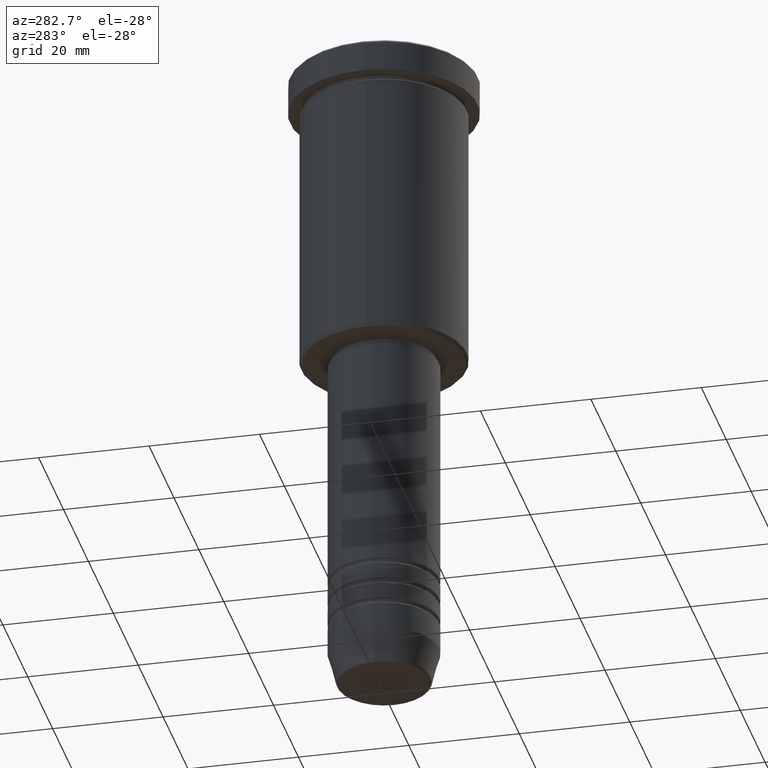
[diagram: clean part render]
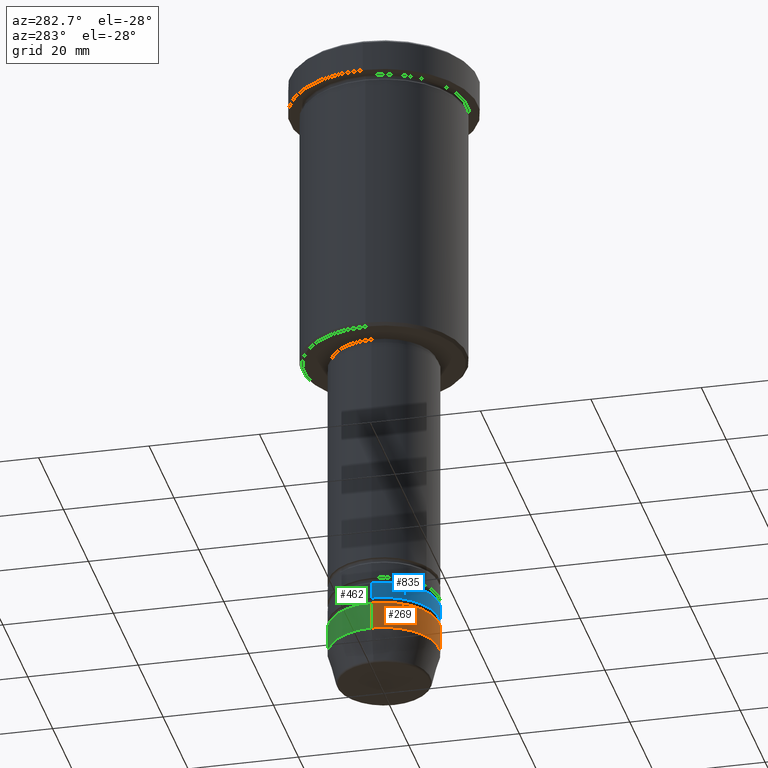
[diagram: same view with three faces highlighted in distinct colors, each labeled with its STEP entity id]
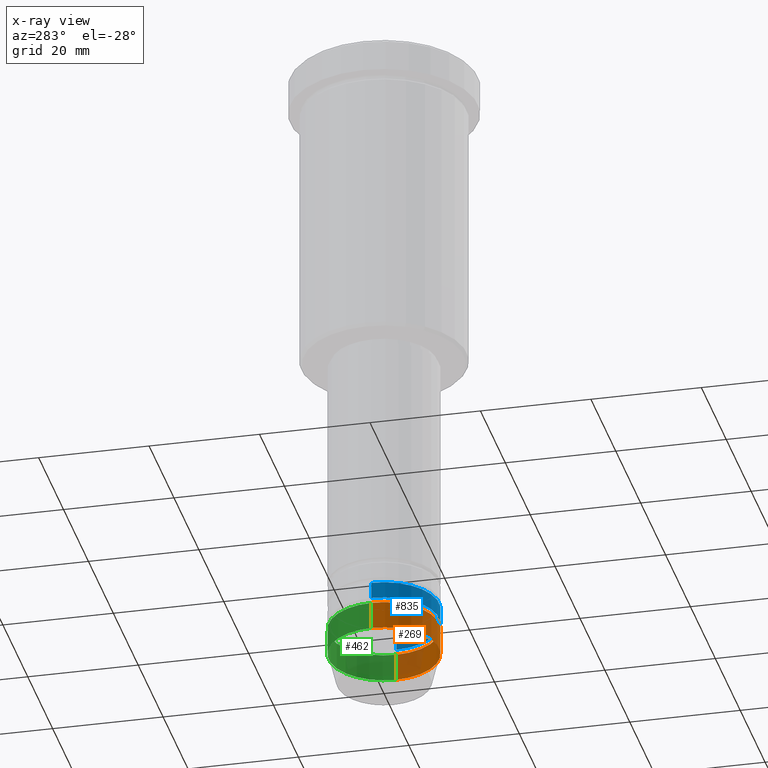
[diagram: x-ray of the same camera — body ghosted, the three highlighted faces saturated]
A machine part, auxiliary view with three faces highlighted in distinct colors.
The next image is the same camera in x-ray (body ghosted, the three faces saturated) — at least one of them is partly hidden behind the body in this view.
Their STEP definitions:

[orange] entity #269 — the highlighted cylindrical surface (partial cylindrical patch) has radius 10 mm, axis along (-0, -0, 1).
#32 = DIRECTION ( 'NONE',  ( -0.000000000000000000, -0.000000000000000000, 1.000000000000000000 ) ) ;
#38 = LINE ( 'NONE', #130, #307 ) ;
#41 = CIRCLE ( 'NONE', #196, 10.00000000000000000 ) ;
#95 = VECTOR ( 'NONE', #32, 1000.000000000000000 ) ;
#130 = CARTESIAN_POINT ( 'NONE',  ( 10.00000000000000178, 0.000000000000000000, 0.000000000000000000 ) ) ;
#196 = AXIS2_PLACEMENT_3D ( 'NONE', #913, #892, #697 ) ;
#212 = VERTEX_POINT ( 'NONE', #984 ) ;
#227 = VERTEX_POINT ( 'NONE', #310 ) ;
#269 = ADVANCED_FACE ( 'NONE', ( #758 ), #784, .T. ) ;
#302 = AXIS2_PLACEMENT_3D ( 'NONE', #1142, #409, #1058 ) ;
#303 = ORIENTED_EDGE ( 'NONE', *, *, #928, .F. ) ;
#307 = VECTOR ( 'NONE', #313, 1000.000000000000000 ) ;
#310 = CARTESIAN_POINT ( 'NONE',  ( 10.00000000000000000, 0.000000000000000000, -108.9999999999999858 ) ) ;
#313 = DIRECTION ( 'NONE',  ( -0.000000000000000000, -0.000000000000000000, 1.000000000000000000 ) ) ;
#360 = VERTEX_POINT ( 'NONE', #997 ) ;
#407 = ORIENTED_EDGE ( 'NONE', *, *, #1136, .F. ) ;
#409 = DIRECTION ( 'NONE',  ( -0.000000000000000000, -0.000000000000000000, 1.000000000000000000 ) ) ;
#423 = DIRECTION ( 'NONE',  ( -0.000000000000000000, -0.000000000000000000, 1.000000000000000000 ) ) ;
#424 = AXIS2_PLACEMENT_3D ( 'NONE', #898, #423, #995 ) ;
#494 = CARTESIAN_POINT ( 'NONE',  ( -10.00000000000000178, 1.224646799147353454E-15, 0.000000000000000000 ) ) ;
#575 = CIRCLE ( 'NONE', #424, 10.00000000000000178 ) ;
#653 = EDGE_CURVE ( 'NONE', #360, #227, #38, .T. ) ;
#685 = ORIENTED_EDGE ( 'NONE', *, *, #899, .T. ) ;
#697 = DIRECTION ( 'NONE',  ( 1.000000000000000000, 0.000000000000000000, 0.000000000000000000 ) ) ;
#758 = FACE_OUTER_BOUND ( 'NONE', #1080, .T. ) ;
#784 = CYLINDRICAL_SURFACE ( 'NONE', #302, 10.00000000000000178 ) ;
#800 = ORIENTED_EDGE ( 'NONE', *, *, #653, .T. ) ;
#892 = DIRECTION ( 'NONE',  ( -0.000000000000000000, -0.000000000000000000, 1.000000000000000000 ) ) ;
#898 = CARTESIAN_POINT ( 'NONE',  ( 0.000000000000000000, 0.000000000000000000, -113.9999999999999858 ) ) ;
#899 = EDGE_CURVE ( 'NONE', #1060, #360, #575, .T. ) ;
#913 = CARTESIAN_POINT ( 'NONE',  ( 0.000000000000000000, 0.000000000000000000, -108.9999999999999858 ) ) ;
#928 = EDGE_CURVE ( 'NONE', #212, #227, #41, .T. ) ;
#984 = CARTESIAN_POINT ( 'NONE',  ( -10.00000000000000000, 1.224646799147353256E-15, -108.9999999999999858 ) ) ;
#995 = DIRECTION ( 'NONE',  ( 1.000000000000000000, 0.000000000000000000, 0.000000000000000000 ) ) ;
#997 = CARTESIAN_POINT ( 'NONE',  ( 10.00000000000000178, 0.000000000000000000, -113.9999999999999858 ) ) ;
#1058 = DIRECTION ( 'NONE',  ( 1.000000000000000000, 0.000000000000000000, 0.000000000000000000 ) ) ;
#1060 = VERTEX_POINT ( 'NONE', #1109 ) ;
#1080 = EDGE_LOOP ( 'NONE', ( #407, #685, #800, #303 ) ) ;
#1109 = CARTESIAN_POINT ( 'NONE',  ( -10.00000000000000178, 1.224646799147353454E-15, -113.9999999999999858 ) ) ;
#1125 = LINE ( 'NONE', #494, #95 ) ;
#1136 = EDGE_CURVE ( 'NONE', #1060, #212, #1125, .T. ) ;
#1142 = CARTESIAN_POINT ( 'NONE',  ( 0.000000000000000000, 0.000000000000000000, 0.000000000000000000 ) ) ;

[blue] entity #835 — the highlighted cylindrical surface (partial cylindrical patch) has radius 10 mm, axis along (-0, -0, 1).
#117 = LINE ( 'NONE', #868, #451 ) ;
#145 = CARTESIAN_POINT ( 'NONE',  ( -10.00000000000000178, 1.224646799147353454E-15, -107.9999999999999716 ) ) ;
#149 = ORIENTED_EDGE ( 'NONE', *, *, #532, .F. ) ;
#222 = VERTEX_POINT ( 'NONE', #145 ) ;
#236 = CIRCLE ( 'NONE', #384, 10.00000000000000000 ) ;
#330 = CYLINDRICAL_SURFACE ( 'NONE', #848, 10.00000000000000178 ) ;
#354 = DIRECTION ( 'NONE',  ( -0.000000000000000000, -0.000000000000000000, 1.000000000000000000 ) ) ;
#357 = DIRECTION ( 'NONE',  ( 1.000000000000000000, 0.000000000000000000, 0.000000000000000000 ) ) ;
#367 = CIRCLE ( 'NONE', #1172, 10.00000000000000178 ) ;
#371 = CARTESIAN_POINT ( 'NONE',  ( -10.00000000000000178, 1.224646799147353454E-15, 0.000000000000000000 ) ) ;
#384 = AXIS2_PLACEMENT_3D ( 'NONE', #754, #963, #854 ) ;
#387 = DIRECTION ( 'NONE',  ( -0.000000000000000000, -0.000000000000000000, 1.000000000000000000 ) ) ;
#411 = EDGE_LOOP ( 'NONE', ( #149, #545, #413, #442 ) ) ;
#413 = ORIENTED_EDGE ( 'NONE', *, *, #660, .T. ) ;
#442 = ORIENTED_EDGE ( 'NONE', *, *, #746, .F. ) ;
#451 = VECTOR ( 'NONE', #492, 1000.000000000000000 ) ;
#492 = DIRECTION ( 'NONE',  ( -0.000000000000000000, -0.000000000000000000, 1.000000000000000000 ) ) ;
#496 = CARTESIAN_POINT ( 'NONE',  ( 0.000000000000000000, 0.000000000000000000, -107.9999999999999716 ) ) ;
#503 = CARTESIAN_POINT ( 'NONE',  ( -10.00000000000000000, 1.224646799147353256E-15, -104.9999999999999858 ) ) ;
#504 = DIRECTION ( 'NONE',  ( -0.000000000000000000, -0.000000000000000000, 1.000000000000000000 ) ) ;
#532 = EDGE_CURVE ( 'NONE', #222, #1115, #851, .T. ) ;
#544 = VERTEX_POINT ( 'NONE', #570 ) ;
#545 = ORIENTED_EDGE ( 'NONE', *, *, #738, .T. ) ;
#570 = CARTESIAN_POINT ( 'NONE',  ( 10.00000000000000178, 0.000000000000000000, -107.9999999999999716 ) ) ;
#624 = CARTESIAN_POINT ( 'NONE',  ( 0.000000000000000000, 0.000000000000000000, 0.000000000000000000 ) ) ;
#631 = VERTEX_POINT ( 'NONE', #1028 ) ;
#660 = EDGE_CURVE ( 'NONE', #544, #631, #117, .T. ) ;
#738 = EDGE_CURVE ( 'NONE', #222, #544, #367, .T. ) ;
#746 = EDGE_CURVE ( 'NONE', #1115, #631, #236, .T. ) ;
#754 = CARTESIAN_POINT ( 'NONE',  ( 0.000000000000000000, 0.000000000000000000, -104.9999999999999858 ) ) ;
#781 = VECTOR ( 'NONE', #387, 1000.000000000000000 ) ;
#835 = ADVANCED_FACE ( 'NONE', ( #983 ), #330, .T. ) ;
#848 = AXIS2_PLACEMENT_3D ( 'NONE', #624, #354, #357 ) ;
#851 = LINE ( 'NONE', #371, #781 ) ;
#854 = DIRECTION ( 'NONE',  ( 1.000000000000000000, 0.000000000000000000, 0.000000000000000000 ) ) ;
#868 = CARTESIAN_POINT ( 'NONE',  ( 10.00000000000000178, 0.000000000000000000, 0.000000000000000000 ) ) ;
#963 = DIRECTION ( 'NONE',  ( -0.000000000000000000, -0.000000000000000000, 1.000000000000000000 ) ) ;
#983 = FACE_OUTER_BOUND ( 'NONE', #411, .T. ) ;
#1028 = CARTESIAN_POINT ( 'NONE',  ( 10.00000000000000000, 0.000000000000000000, -104.9999999999999858 ) ) ;
#1037 = DIRECTION ( 'NONE',  ( 1.000000000000000000, 0.000000000000000000, 0.000000000000000000 ) ) ;
#1115 = VERTEX_POINT ( 'NONE', #503 ) ;
#1172 = AXIS2_PLACEMENT_3D ( 'NONE', #496, #504, #1037 ) ;

[green] entity #462 — the highlighted cylindrical surface (partial cylindrical patch) has radius 10 mm, axis along (-0, -0, 1).
#32 = DIRECTION ( 'NONE',  ( -0.000000000000000000, -0.000000000000000000, 1.000000000000000000 ) ) ;
#38 = LINE ( 'NONE', #130, #307 ) ;
#52 = DIRECTION ( 'NONE',  ( 1.000000000000000000, 0.000000000000000000, 0.000000000000000000 ) ) ;
#95 = VECTOR ( 'NONE', #32, 1000.000000000000000 ) ;
#130 = CARTESIAN_POINT ( 'NONE',  ( 10.00000000000000178, 0.000000000000000000, 0.000000000000000000 ) ) ;
#179 = AXIS2_PLACEMENT_3D ( 'NONE', #480, #390, #489 ) ;
#212 = VERTEX_POINT ( 'NONE', #984 ) ;
#227 = VERTEX_POINT ( 'NONE', #310 ) ;
#257 = EDGE_CURVE ( 'NONE', #360, #1060, #920, .T. ) ;
#296 = ORIENTED_EDGE ( 'NONE', *, *, #257, .T. ) ;
#305 = AXIS2_PLACEMENT_3D ( 'NONE', #807, #1175, #1166 ) ;
#307 = VECTOR ( 'NONE', #313, 1000.000000000000000 ) ;
#310 = CARTESIAN_POINT ( 'NONE',  ( 10.00000000000000000, 0.000000000000000000, -108.9999999999999858 ) ) ;
#313 = DIRECTION ( 'NONE',  ( -0.000000000000000000, -0.000000000000000000, 1.000000000000000000 ) ) ;
#322 = ORIENTED_EDGE ( 'NONE', *, *, #1136, .T. ) ;
#339 = ORIENTED_EDGE ( 'NONE', *, *, #653, .F. ) ;
#360 = VERTEX_POINT ( 'NONE', #997 ) ;
#390 = DIRECTION ( 'NONE',  ( -0.000000000000000000, -0.000000000000000000, 1.000000000000000000 ) ) ;
#433 = ORIENTED_EDGE ( 'NONE', *, *, #552, .F. ) ;
#462 = ADVANCED_FACE ( 'NONE', ( #797 ), #915, .T. ) ;
#480 = CARTESIAN_POINT ( 'NONE',  ( 0.000000000000000000, 0.000000000000000000, -108.9999999999999858 ) ) ;
#489 = DIRECTION ( 'NONE',  ( 1.000000000000000000, 0.000000000000000000, 0.000000000000000000 ) ) ;
#494 = CARTESIAN_POINT ( 'NONE',  ( -10.00000000000000178, 1.224646799147353454E-15, 0.000000000000000000 ) ) ;
#552 = EDGE_CURVE ( 'NONE', #227, #212, #864, .T. ) ;
#653 = EDGE_CURVE ( 'NONE', #360, #227, #38, .T. ) ;
#750 = EDGE_LOOP ( 'NONE', ( #296, #322, #433, #339 ) ) ;
#797 = FACE_OUTER_BOUND ( 'NONE', #750, .T. ) ;
#807 = CARTESIAN_POINT ( 'NONE',  ( 0.000000000000000000, 0.000000000000000000, 0.000000000000000000 ) ) ;
#864 = CIRCLE ( 'NONE', #179, 10.00000000000000000 ) ;
#915 = CYLINDRICAL_SURFACE ( 'NONE', #305, 10.00000000000000178 ) ;
#920 = CIRCLE ( 'NONE', #938, 10.00000000000000178 ) ;
#938 = AXIS2_PLACEMENT_3D ( 'NONE', #1043, #1135, #52 ) ;
#984 = CARTESIAN_POINT ( 'NONE',  ( -10.00000000000000000, 1.224646799147353256E-15, -108.9999999999999858 ) ) ;
#997 = CARTESIAN_POINT ( 'NONE',  ( 10.00000000000000178, 0.000000000000000000, -113.9999999999999858 ) ) ;
#1043 = CARTESIAN_POINT ( 'NONE',  ( 0.000000000000000000, 0.000000000000000000, -113.9999999999999858 ) ) ;
#1060 = VERTEX_POINT ( 'NONE', #1109 ) ;
#1109 = CARTESIAN_POINT ( 'NONE',  ( -10.00000000000000178, 1.224646799147353454E-15, -113.9999999999999858 ) ) ;
#1125 = LINE ( 'NONE', #494, #95 ) ;
#1135 = DIRECTION ( 'NONE',  ( -0.000000000000000000, -0.000000000000000000, 1.000000000000000000 ) ) ;
#1136 = EDGE_CURVE ( 'NONE', #1060, #212, #1125, .T. ) ;
#1166 = DIRECTION ( 'NONE',  ( 1.000000000000000000, 0.000000000000000000, 0.000000000000000000 ) ) ;
#1175 = DIRECTION ( 'NONE',  ( -0.000000000000000000, -0.000000000000000000, 1.000000000000000000 ) ) ;